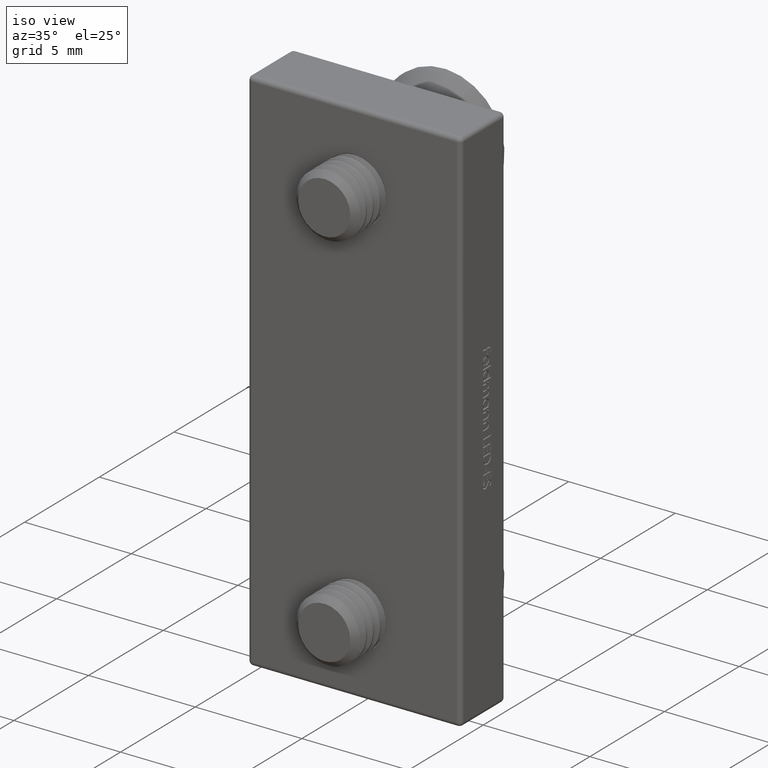
[diagram: clean part render]
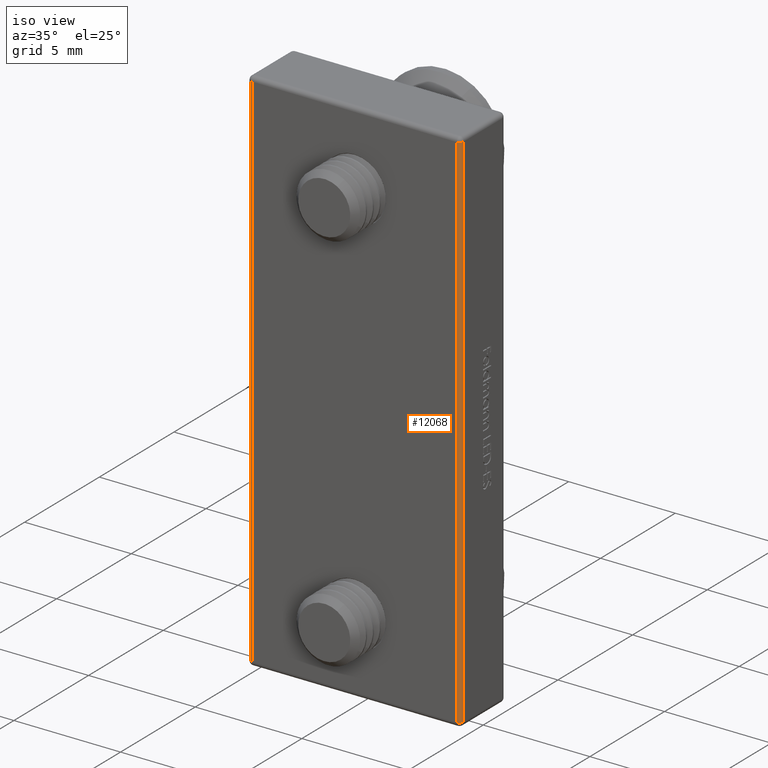
[diagram: same view with one face highlighted and labeled with its STEP entity id]
A machine part, iso view. The second image highlights one B-rep face of the part: STEP entity #12068.
In plain terms, the highlighted cylindrical surface (edge-blend (fillet) strip) has radius 0.2 mm, axis along (0, 0, -1).
Its self-contained STEP definition (entity closure, byte-faithful):
#84 = LINE ( 'NONE', #2705, #7422 ) ;
#138 = CYLINDRICAL_SURFACE ( 'NONE', #2802, 0.1999999999999996500 ) ;
#1101 = EDGE_CURVE ( 'NONE', #10876, #12577, #2806, .T. ) ;
#1581 = DIRECTION ( 'NONE',  ( 0.0000000000000000000, -0.0000000000000000000, -1.000000000000000000 ) ) ;
#1835 = DIRECTION ( 'NONE',  ( -0.0000000000000000000, -0.0000000000000000000, 1.000000000000000000 ) ) ;
#1901 = ORIENTED_EDGE ( 'NONE', *, *, #5487, .F. ) ;
#2329 = DIRECTION ( 'NONE',  ( -1.000000000000000000, 0.0000000000000000000, 0.0000000000000000000 ) ) ;
#2454 = CARTESIAN_POINT ( 'NONE',  ( 4.799999999999999800, -1.299999999999999400, -12.30000000000000200 ) ) ;
#2705 = CARTESIAN_POINT ( 'NONE',  ( 4.999999999999999100, -1.299999999999999400, 12.50000000000000000 ) ) ;
#2802 = AXIS2_PLACEMENT_3D ( 'NONE', #10294, #3246, #2329 ) ;
#2806 = CIRCLE ( 'NONE', #8633, 0.1999999999999996500 ) ;
#3246 = DIRECTION ( 'NONE',  ( 0.0000000000000000000, 0.0000000000000000000, -1.000000000000000000 ) ) ;
#3453 = VERTEX_POINT ( 'NONE', #5465 ) ;
#3674 = CARTESIAN_POINT ( 'NONE',  ( 4.999999999999999100, -1.299999999999999400, -12.30000000000000200 ) ) ;
#3678 = ORIENTED_EDGE ( 'NONE', *, *, #6765, .F. ) ;
#3793 = AXIS2_PLACEMENT_3D ( 'NONE', #11752, #1581, #8657 ) ;
#3909 = CIRCLE ( 'NONE', #3793, 0.1999999999999996500 ) ;
#5198 = CARTESIAN_POINT ( 'NONE',  ( 4.799999999999999800, -1.499999999999999300, -12.30000000000000200 ) ) ;
#5465 = CARTESIAN_POINT ( 'NONE',  ( 4.799999999999999800, -1.499999999999999300, 12.30000000000000100 ) ) ;
#5487 = EDGE_CURVE ( 'NONE', #12577, #3453, #11054, .T. ) ;
#5655 = DIRECTION ( 'NONE',  ( -1.000000000000000000, 0.0000000000000000000, 0.0000000000000000000 ) ) ;
#5683 = DIRECTION ( 'NONE',  ( 0.0000000000000000000, 0.0000000000000000000, -1.000000000000000000 ) ) ;
#6765 = EDGE_CURVE ( 'NONE', #11145, #10876, #84, .T. ) ;
#7422 = VECTOR ( 'NONE', #5683, 1000.000000000000000 ) ;
#8633 = AXIS2_PLACEMENT_3D ( 'NONE', #2454, #11635, #5655 ) ;
#8657 = DIRECTION ( 'NONE',  ( 1.000000000000000000, 0.0000000000000000000, 0.0000000000000000000 ) ) ;
#8747 = FACE_OUTER_BOUND ( 'NONE', #10546, .T. ) ;
#8993 = ORIENTED_EDGE ( 'NONE', *, *, #9897, .T. ) ;
#9644 = CARTESIAN_POINT ( 'NONE',  ( 4.799999999999998900, -1.499999999999999300, 12.50000000000000000 ) ) ;
#9897 = EDGE_CURVE ( 'NONE', #11145, #3453, #3909, .T. ) ;
#10294 = CARTESIAN_POINT ( 'NONE',  ( 4.799999999999999800, -1.299999999999999400, 12.50000000000000000 ) ) ;
#10546 = EDGE_LOOP ( 'NONE', ( #8993, #1901, #12500, #3678 ) ) ;
#10876 = VERTEX_POINT ( 'NONE', #3674 ) ;
#11054 = LINE ( 'NONE', #9644, #11686 ) ;
#11145 = VERTEX_POINT ( 'NONE', #11570 ) ;
#11570 = CARTESIAN_POINT ( 'NONE',  ( 4.999999999999999100, -1.299999999999999400, 12.30000000000000100 ) ) ;
#11635 = DIRECTION ( 'NONE',  ( 0.0000000000000000000, 0.0000000000000000000, -1.000000000000000000 ) ) ;
#11686 = VECTOR ( 'NONE', #1835, 1000.000000000000000 ) ;
#11752 = CARTESIAN_POINT ( 'NONE',  ( 4.799999999999999800, -1.299999999999999400, 12.30000000000000100 ) ) ;
#12068 = ADVANCED_FACE ( 'NONE', ( #8747 ), #138, .T. ) ;
#12500 = ORIENTED_EDGE ( 'NONE', *, *, #1101, .F. ) ;
#12577 = VERTEX_POINT ( 'NONE', #5198 ) ;